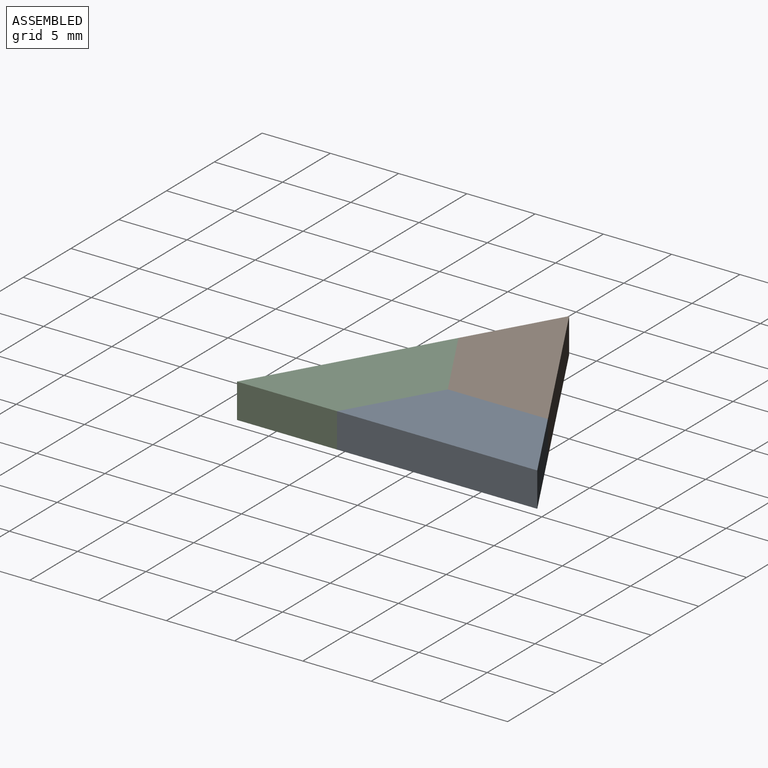
[diagram: assembled view]
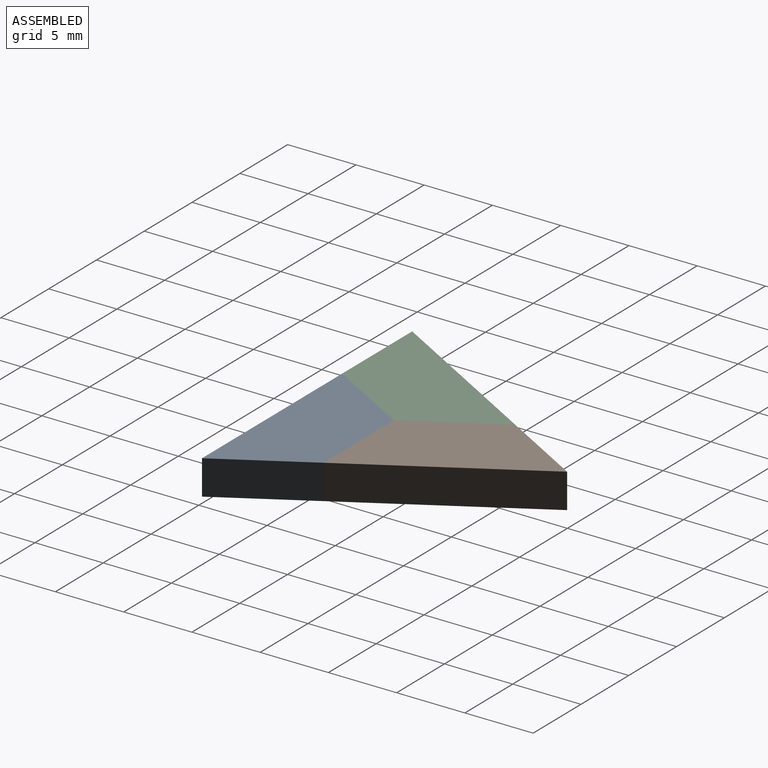
[diagram: assembled view, second angle]
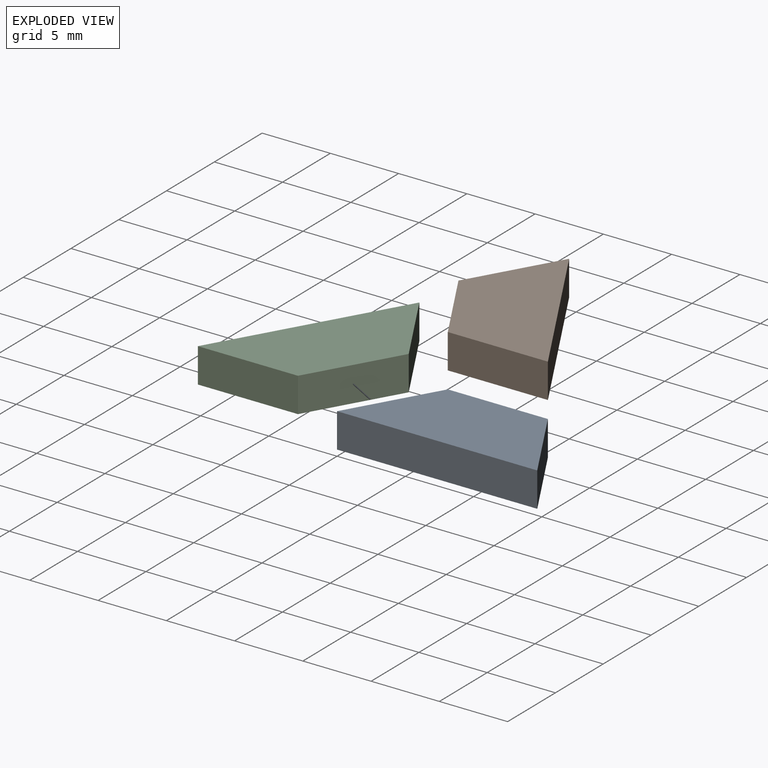
[diagram: exploded view]
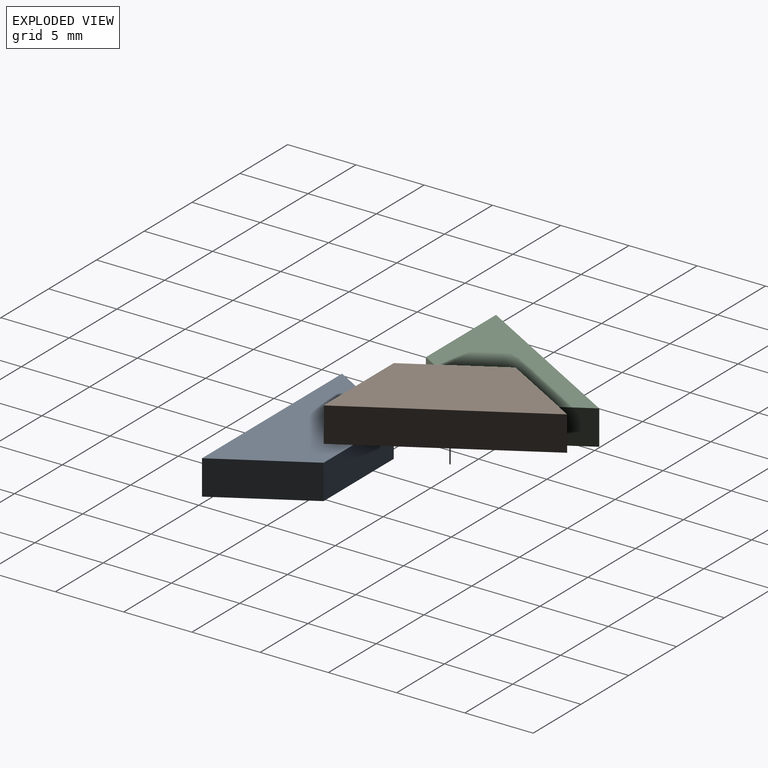
[diagram: exploded view, second angle]
ASSEMBLY  parts=3 mates=6
PART A: 6 faces, bbox 14.7x6.4x2.5 mm
  f0: plane 7.33x2.54mm, normal (0,1,0), area 18.6mm2, adj f1,f3,f4,f5
  f1: plane 6.35x3.67mm, normal (-0.87,0.5,0), area 18.6mm2, adj f0,f2,f4,f5
  f2: plane 14.66x2.54mm, normal (0,-1,0), area 37.2mm2, adj f1,f3,f4,f5
  f3: plane 6.35x3.67mm, normal (0.87,0.5,0), area 18.6mm2, adj f0,f2,f4,f5
  f4: plane 14.66x6.35mm, normal (0,0,1), area 69.8mm2, adj f0,f1,f2,f3
  f5: plane 14.66x6.35mm, normal (0,0,-1), area 69.8mm2, adj f0,f1,f2,f3
PART B: 6 faces, bbox 11x12.7x2.5 mm
  f0: plane 12.7x11mm, normal (0,0,1), area 69.8mm2, adj f1,f3,f4,f5
  f1: plane 7.33x2.54mm, normal (0,-1,0), area 18.6mm2, adj f0,f2,f3,f4
  f2: plane 12.7x11mm, normal (0,0,-1), area 69.8mm2, adj f1,f3,f4,f5
  f3: plane 12.7x7.33mm, normal (0.87,0.5,0), area 37.2mm2, adj f0,f1,f2,f5
  f4: plane 6.35x3.67mm, normal (-0.87,-0.5,0), area 18.6mm2, adj f0,f1,f2,f5
  f5: plane 6.35x3.67mm, normal (-0.87,0.5,0), area 18.6mm2, adj f0,f2,f3,f4
PART C: 6 faces, bbox 11x12.7x2.5 mm
  f0: plane 12.7x11mm, normal (0,0,1), area 69.8mm2, adj f1,f2,f3,f4
  f1: plane 6.35x3.67mm, normal (0.87,-0.5,0), area 18.6mm2, adj f0,f2,f4,f5
  f2: plane 6.35x3.67mm, normal (0.87,0.5,0), area 18.6mm2, adj f0,f1,f3,f5
  f3: plane 12.7x7.33mm, normal (-0.87,0.5,0), area 37.2mm2, adj f0,f2,f4,f5
  f4: plane 7.33x2.54mm, normal (0,-1,0), area 18.6mm2, adj f0,f1,f3,f5
  f5: plane 12.7x11mm, normal (0,0,-1), area 69.8mm2, adj f1,f2,f3,f4
PLACE A at identity fixed
PLACE B rot(axis=(0.87,0.5,0),180deg) t=(-7.33,0,2.54)mm
PLACE C t=(-11,-6.35,0)mm
MATE planar B.f2 <-> A.f4  axis (0,0,1) through (4.89,11.29,2.54)mm
MATE planar B.f1 <-> C.f3  axis (-0.87,0.5,0) through (1.83,15.88,1.27)mm
MATE planar C.f1 <-> A.f1  axis (0.87,-0.5,0) through (1.83,3.18,1.27)mm
MATE planar C.f4 <-> A.f2  axis (0,-1,0) through (-3.67,0,1.27)mm
MATE planar A.f0 <-> B.f5  axis (0,1,0) through (7.33,6.35,1.27)mm
MATE planar C.f0 <-> B.f2  axis (0,0,1) through (-1.22,4.94,2.54)mm
